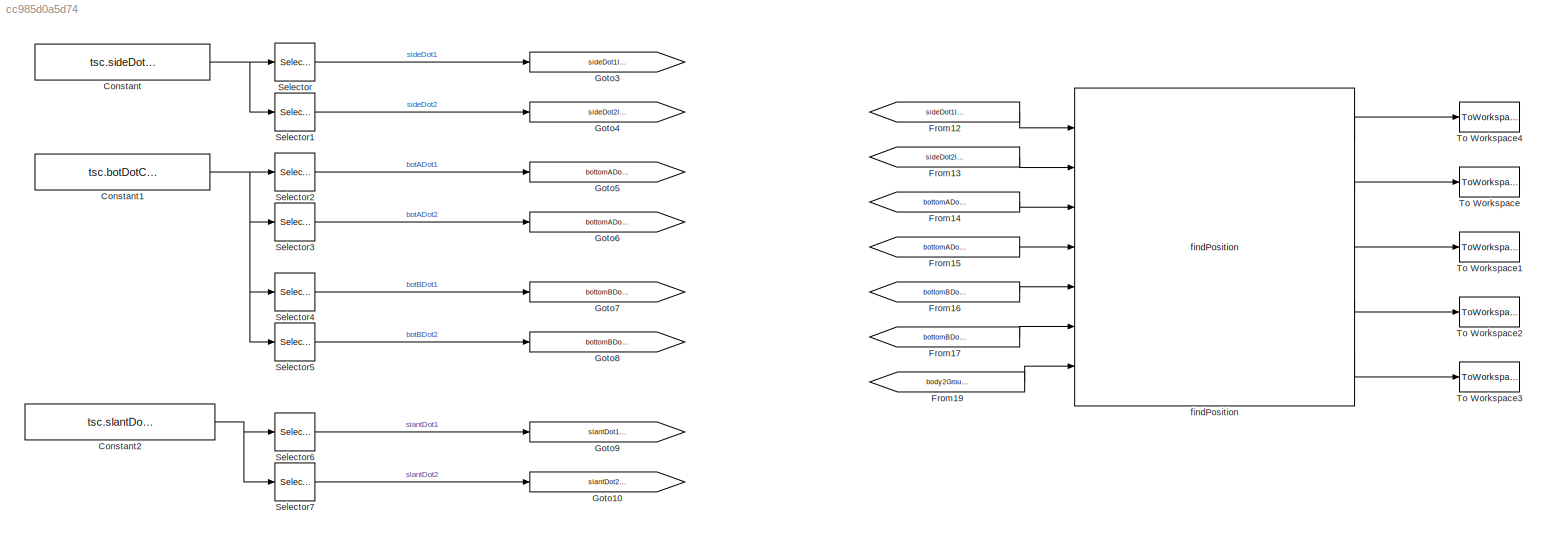
MODEL slx_cc985d0a5d74
KIND model
CONFIG AbsTol = auto
CONFIG EnableMultiTasking = off
CONFIG FixedStep = auto
CONFIG MaxStep = auto
CONFIG MinStep = auto
CONFIG RelTol = 1e-3
CONFIG SampleTimeConstraint = Unconstrained
CONFIG Solver = VariableStepAuto
CONFIG SolverName = VariableStepAuto
CONFIG StartTime = 0.0
CONFIG StopTime = 10.0
BLOCK [Constant] Constant
  Value = tsc.sideDotCoords.Data(:,:,end)
BLOCK [Constant] Constant1
  Value = tsc.botDotCoords.Data(:,:,end)
BLOCK [Constant] Constant2
  Value = tsc.slantDotCoords.Data(:,:,end)
BLOCK [From] From12
  GotoTag = sideDot1ImageCoords_px
BLOCK [From] From13
  GotoTag = sideDot2ImageCoords_px
BLOCK [From] From14
  GotoTag = bottomADot1ImageCoords_px
BLOCK [From] From15
  GotoTag = bottomADot2ImageCoords_px
BLOCK [From] From16
  GotoTag = bottomBDot1ImageCoords_px
BLOCK [From] From17
  GotoTag = bottomBDot2ImageCoords_px
BLOCK [From] From19
  GotoTag = body2GroundRotationMatrix
BLOCK [Goto] Goto10
  GotoTag = slantDot2ImageCoords_px
BLOCK [Goto] Goto3
  GotoTag = sideDot1ImageCoords_px
BLOCK [Goto] Goto4
  GotoTag = sideDot2ImageCoords_px
BLOCK [Goto] Goto5
  GotoTag = bottomADot1ImageCoords_px
BLOCK [Goto] Goto6
  GotoTag = bottomADot2ImageCoords_px
BLOCK [Goto] Goto7
  GotoTag = bottomBDot1ImageCoords_px
BLOCK [Goto] Goto8
  GotoTag = bottomBDot2ImageCoords_px
BLOCK [Goto] Goto9
  GotoTag = slantDot1ImageCoords_px
BLOCK [Selector] Selector
  IndexOptions = Index vector (dialog)
  Indices = [1 2]
  InputPortWidth = 4
  OutputSizes = 1
  Ports = [1, 1]
BLOCK [Selector] Selector1
  IndexOptions = Index vector (dialog)
  Indices = [3 4]
  InputPortWidth = 4
  OutputSizes = 1
  Ports = [1, 1]
BLOCK [Selector] Selector2
  IndexOptions = Index vector (dialog)
  Indices = [1 2]
  InputPortWidth = 8
  OutputSizes = 1
  Ports = [1, 1]
BLOCK [Selector] Selector3
  IndexOptions = Index vector (dialog)
  Indices = [3 4]
  InputPortWidth = 8
  OutputSizes = 1
  Ports = [1, 1]
BLOCK [Selector] Selector4
  IndexOptions = Index vector (dialog)
  Indices = [5 6]
  InputPortWidth = 8
  OutputSizes = 1
  Ports = [1, 1]
BLOCK [Selector] Selector5
  IndexOptions = Index vector (dialog)
  Indices = [7 8]
  InputPortWidth = 8
  OutputSizes = 1
  Ports = [1, 1]
BLOCK [Selector] Selector6
  IndexOptions = Index vector (dialog)
  Indices = [1 2]
  InputPortWidth = 4
  OutputSizes = 1
  Ports = [1, 1]
BLOCK [Selector] Selector7
  IndexOptions = Index vector (dialog)
  Indices = [3 4]
  InputPortWidth = 4
  OutputSizes = 1
  Ports = [1, 1]
BLOCK [ToWorkspace] To Workspace
  FixptAsFi = on
  MaxDataPoints = inf
  Ports = [1]
  SampleTime = -1
  Save2DSignal = 3-D array (concatenate along third dimension)
  SaveFormat = Timeseries
  VariableName = side
BLOCK [ToWorkspace] To Workspace1
  FixptAsFi = on
  MaxDataPoints = inf
  Ports = [1]
  SampleTime = -1
  Save2DSignal = 3-D array (concatenate along third dimension)
  SaveFormat = Timeseries
  VariableName = botA
BLOCK [ToWorkspace] To Workspace2
  FixptAsFi = on
  MaxDataPoints = inf
  Ports = [1]
  SampleTime = -1
  Save2DSignal = 3-D array (concatenate along third dimension)
  SaveFormat = Timeseries
  VariableName = botB
BLOCK [ToWorkspace] To Workspace3
  FixptAsFi = on
  MaxDataPoints = inf
  Ports = [1]
  SampleTime = -1
  Save2DSignal = 3-D array (concatenate along third dimension)
  SaveFormat = Timeseries
  VariableName = slant
BLOCK [ToWorkspace] To Workspace4
  FixptAsFi = on
  MaxDataPoints = inf
  Ports = [1]
  SampleTime = -1
  Save2DSignal = 3-D array (concatenate along third dimension)
  SaveFormat = Timeseries
  VariableName = CoM
BLOCK [Reference] findPosition  REF=findPosition_ul/findPosition
  Ports = [7, 5]
  SourceBlock = findPosition_ul/findPosition
NET Constant1:1 -> Selector2:1, Selector3:1, Selector4:1, Selector5:1
NET Constant2:1 -> Selector6:1, Selector7:1
NET Constant:1 -> Selector1:1, Selector:1
LINE From12:1 -> findPosition:1
LINE From13:1 -> findPosition:2
LINE From14:1 -> findPosition:3
LINE From15:1 -> findPosition:4
LINE From16:1 -> findPosition:5
LINE From17:1 -> findPosition:6
LINE From19:1 -> findPosition:7
LINE Selector1:1 -> Goto4:1
LINE Selector2:1 -> Goto5:1
LINE Selector3:1 -> Goto6:1
LINE Selector4:1 -> Goto7:1
LINE Selector5:1 -> Goto8:1
LINE Selector6:1 -> Goto9:1
LINE Selector7:1 -> Goto10:1
LINE Selector:1 -> Goto3:1
LINE findPosition:1 -> To Workspace4:1
LINE findPosition:2 -> To Workspace:1
LINE findPosition:3 -> To Workspace1:1
LINE findPosition:4 -> To Workspace2:1
LINE findPosition:5 -> To Workspace3:1
note: NET lines group one-source signal fan-out (src -> all destinations, sorted); 1:1 wires keep LINE
